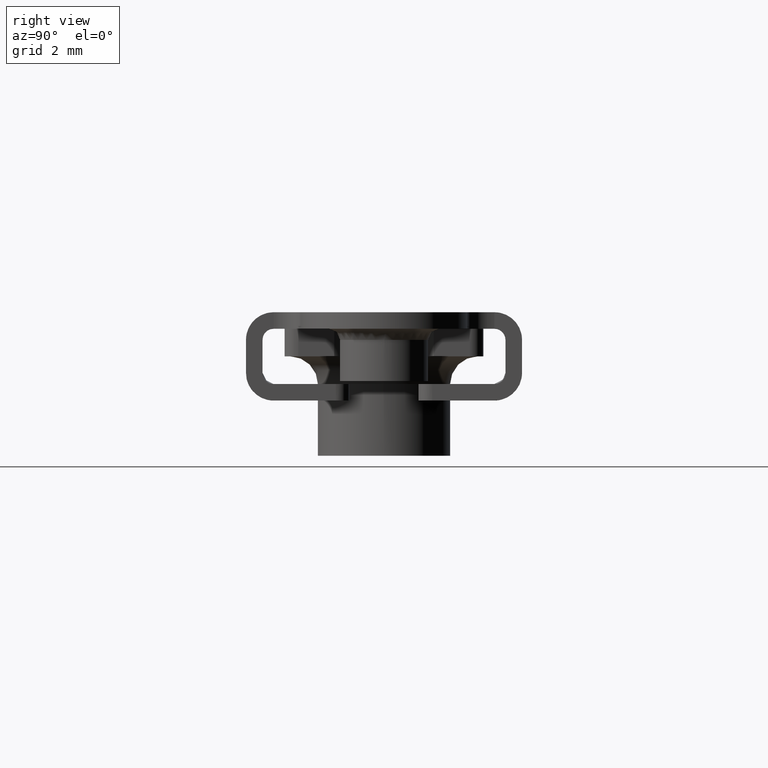
[diagram: clean part render]
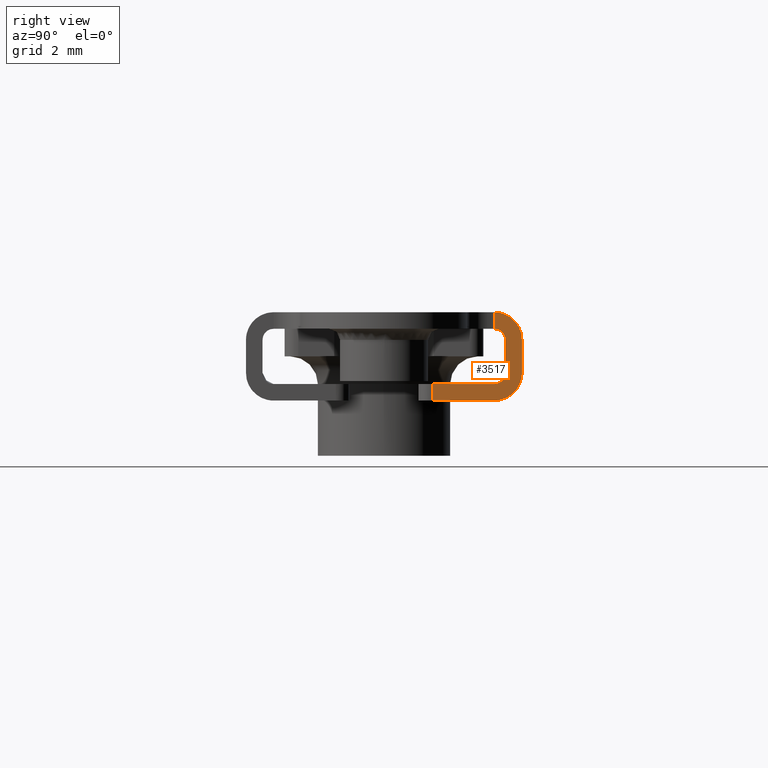
[diagram: same view with one face highlighted and labeled with its STEP entity id]
A machine part, right view. The second image highlights one B-rep face of the part: STEP entity #3517.
In plain terms, the highlighted face is a freeform B-spline surface patch.
Its self-contained STEP definition (entity closure, byte-faithful):
#3377=CARTESIAN_POINT('',(6.0,3.999999999999945,0.0));
#3378=VERTEX_POINT('',#3377);
#3393=CARTESIAN_POINT('',(6.0,3.999999999999945,-0.600000000000045));
#3394=VERTEX_POINT('',#3393);
#3408=CARTESIAN_POINT('',(6.0,3.999999999999945,-0.600000000000045));
#3409=CARTESIAN_POINT('',(6.0,3.999999999999945,0.0));
#3410=QUASI_UNIFORM_CURVE('',1,(#3408,#3409),.UNSPECIFIED.,.F.,.U.);
#3411=EDGE_CURVE('',#3394,#3378,#3410,.T.);
#3416=CARTESIAN_POINT('',(6.0,1.587662506301460,-3.359839993781401));
#3417=CARTESIAN_POINT('',(6.0,1.587662506301460,0.159840079627688));
#3418=CARTESIAN_POINT('',(6.0,5.162337580872490,-3.359839993781401));
#3419=CARTESIAN_POINT('',(6.0,5.162337580872490,0.159840079627688));
#3420=B_SPLINE_SURFACE_WITH_KNOTS('',1,1,((#3416,#3418),(#3417,#3419)),.UNSPECIFIED.,.F.,.F.,.U.,(2,2),(2,2),(0.0,3.519680073409089),(0.0,3.574675074571030),.UNSPECIFIED.);
#3421=CARTESIAN_POINT('',(6.0,4.999999999999490,-2.199999999984400));
#3422=VERTEX_POINT('',#3421);
#3423=CARTESIAN_POINT('',(6.0,4.999999999999941,-1.0));
#3424=VERTEX_POINT('',#3423);
#3425=CARTESIAN_POINT('',(6.0,4.999999999999490,-2.199999999984400));
#3426=CARTESIAN_POINT('',(6.0,4.999999999999941,-1.0));
#3427=QUASI_UNIFORM_CURVE('',1,(#3425,#3426),.UNSPECIFIED.,.F.,.U.);
#3428=EDGE_CURVE('',#3422,#3424,#3427,.T.);
#3429=ORIENTED_EDGE('',*,*,#3428,.T.);
#3430=CARTESIAN_POINT('',(6.0,4.999999999999946,-1.0));
#3431=CARTESIAN_POINT('',(6.0,4.999999999999947,0.0));
#3432=CARTESIAN_POINT('',(6.0,3.999999999999945,0.0));
#3440=(BOUNDED_CURVE()B_SPLINE_CURVE(2,(#3430,#3431,#3432),.UNSPECIFIED.,.F.,.U.)CURVE()GEOMETRIC_REPRESENTATION_ITEM()QUASI_UNIFORM_CURVE()RATIONAL_B_SPLINE_CURVE((1.0,0.707106781186548,1.0))REPRESENTATION_ITEM(''));
#3441=EDGE_CURVE('',#3424,#3378,#3440,.T.);
#3442=ORIENTED_EDGE('',*,*,#3441,.T.);
#3443=ORIENTED_EDGE('',*,*,#3411,.F.);
#3444=CARTESIAN_POINT('',(6.0,4.399999999999465,-1.000000000000036));
#3445=VERTEX_POINT('',#3444);
#3446=CARTESIAN_POINT('',(6.0,3.999999999999945,-0.600000000000045));
#3447=CARTESIAN_POINT('',(6.0,4.399999999999465,-0.600000000000036));
#3448=CARTESIAN_POINT('',(6.0,4.399999999999465,-1.000000000000036));
#3456=(BOUNDED_CURVE()B_SPLINE_CURVE(2,(#3446,#3447,#3448),.UNSPECIFIED.,.F.,.U.)CURVE()GEOMETRIC_REPRESENTATION_ITEM()QUASI_UNIFORM_CURVE()RATIONAL_B_SPLINE_CURVE((1.0,0.707106781186548,1.0))REPRESENTATION_ITEM(''));
#3457=EDGE_CURVE('',#3394,#3445,#3456,.T.);
#3458=ORIENTED_EDGE('',*,*,#3457,.T.);
#3459=CARTESIAN_POINT('',(6.0,4.399999999999465,-2.199999999984400));
#3460=VERTEX_POINT('',#3459);
#3461=CARTESIAN_POINT('',(6.0,4.399999999999465,-1.000000000000036));
#3462=CARTESIAN_POINT('',(6.0,4.399999999999465,-2.199999999984400));
#3463=QUASI_UNIFORM_CURVE('',1,(#3461,#3462),.UNSPECIFIED.,.F.,.U.);
#3464=EDGE_CURVE('',#3445,#3460,#3463,.T.);
#3465=ORIENTED_EDGE('',*,*,#3464,.T.);
#3466=CARTESIAN_POINT('',(6.0,3.999999999999375,-2.599999999984400));
#3467=VERTEX_POINT('',#3466);
#3468=CARTESIAN_POINT('',(6.0,3.999999999999375,-2.599999999984401));
#3469=CARTESIAN_POINT('',(6.0,4.399999999999374,-2.599999999984400));
#3470=CARTESIAN_POINT('',(6.0,4.399999999999375,-2.199999999984400));
#3478=(BOUNDED_CURVE()B_SPLINE_CURVE(2,(#3468,#3469,#3470),.UNSPECIFIED.,.F.,.U.)CURVE()GEOMETRIC_REPRESENTATION_ITEM()QUASI_UNIFORM_CURVE()RATIONAL_B_SPLINE_CURVE((1.0,0.707106781186548,1.0))REPRESENTATION_ITEM(''));
#3479=EDGE_CURVE('',#3467,#3460,#3478,.T.);
#3480=ORIENTED_EDGE('',*,*,#3479,.F.);
#3481=CARTESIAN_POINT('',(6.0,1.750000000002215,-2.599999999984390));
#3482=VERTEX_POINT('',#3481);
#3483=CARTESIAN_POINT('',(6.0,3.999999999999375,-2.599999999984400));
#3484=CARTESIAN_POINT('',(6.0,1.750000000002215,-2.599999999984390));
#3485=QUASI_UNIFORM_CURVE('',1,(#3483,#3484),.UNSPECIFIED.,.F.,.U.);
#3486=EDGE_CURVE('',#3467,#3482,#3485,.T.);
#3487=ORIENTED_EDGE('',*,*,#3486,.T.);
#3488=CARTESIAN_POINT('',(6.0,1.750000000002670,-3.199999999984400));
#3489=VERTEX_POINT('',#3488);
#3490=CARTESIAN_POINT('',(6.0,1.750000000002215,-2.599999999984390));
#3491=CARTESIAN_POINT('',(6.0,1.750000000002670,-3.199999999984400));
#3492=QUASI_UNIFORM_CURVE('',1,(#3490,#3491),.UNSPECIFIED.,.F.,.U.);
#3493=EDGE_CURVE('',#3482,#3489,#3492,.T.);
#3494=ORIENTED_EDGE('',*,*,#3493,.T.);
#3495=CARTESIAN_POINT('',(6.0,3.999999999999490,-3.199999999984400));
#3496=VERTEX_POINT('',#3495);
#3497=CARTESIAN_POINT('',(6.0,1.750000000002670,-3.199999999984400));
#3498=CARTESIAN_POINT('',(6.0,3.999999999999490,-3.199999999984400));
#3499=QUASI_UNIFORM_CURVE('',1,(#3497,#3498),.UNSPECIFIED.,.F.,.U.);
#3500=EDGE_CURVE('',#3489,#3496,#3499,.T.);
#3501=ORIENTED_EDGE('',*,*,#3500,.T.);
#3502=CARTESIAN_POINT('',(6.0,3.999999999999490,-3.199999999984400));
#3503=CARTESIAN_POINT('',(6.0,4.999999999999490,-3.199999999984399));
#3504=CARTESIAN_POINT('',(6.0,4.999999999999490,-2.199999999984400));
#3512=(BOUNDED_CURVE()B_SPLINE_CURVE(2,(#3502,#3503,#3504),.UNSPECIFIED.,.F.,.U.)CURVE()GEOMETRIC_REPRESENTATION_ITEM()QUASI_UNIFORM_CURVE()RATIONAL_B_SPLINE_CURVE((1.0,0.707106781186548,1.0))REPRESENTATION_ITEM(''));
#3513=EDGE_CURVE('',#3496,#3422,#3512,.T.);
#3514=ORIENTED_EDGE('',*,*,#3513,.T.);
#3515=EDGE_LOOP('',(#3429,#3442,#3443,#3458,#3465,#3480,#3487,#3494,#3501,#3514));
#3516=FACE_OUTER_BOUND('',#3515,.T.);
#3517=ADVANCED_FACE('',(#3516),#3420,.F.);